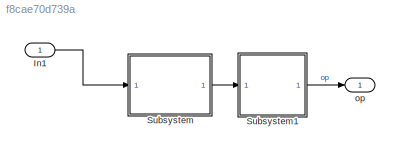
MODEL slx_f8cae70d739a
KIND model
CONFIG AbsTol = auto
CONFIG EnableMultiTasking = off
CONFIG FixedStep = auto
CONFIG MaxStep = auto
CONFIG MinStep = auto
CONFIG RelTol = 1e-3
CONFIG SampleTimeConstraint = Unconstrained
CONFIG SolverName = VariableStepAuto
CONFIG StartTime = 0.0
CONFIG StopTime = 100
BLOCK [Inport] In1
  OutDataTypeStr = double
  PortDimensions = 1
  SampleTime = 0
  SamplingMode = Sample based
  SignalType = real
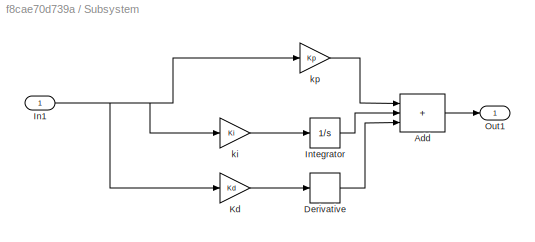
BLOCK [SubSystem] Subsystem
  Ports = [1, 1]
  RequestExecContextInheritance = off
BLOCK [Sum] Subsystem/Add
  IconShape = rectangular
  Inputs = +++
  Ports = [3, 1]
BLOCK [Derivative] Subsystem/Derivative
BLOCK [Inport] Subsystem/In1
BLOCK [Integrator] Subsystem/Integrator
  Ports = [1, 1]
BLOCK [Gain] Subsystem/Kd
  Gain = Kd
BLOCK [Outport] Subsystem/Out1
BLOCK [Gain] Subsystem/ki
  Gain = Ki
BLOCK [Gain] Subsystem/kp
  Gain = Kp
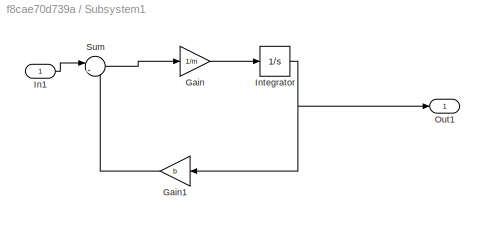
BLOCK [SubSystem] Subsystem1
  Ports = [1, 1]
  RequestExecContextInheritance = off
BLOCK [Gain] Subsystem1/Gain
  Gain = 1/m
BLOCK [Gain] Subsystem1/Gain1
  Gain = b
BLOCK [Inport] Subsystem1/In1
BLOCK [Integrator] Subsystem1/Integrator
  Ports = [1, 1]
BLOCK [Outport] Subsystem1/Out1
BLOCK [Sum] Subsystem1/Sum
  Inputs = |+-
  Ports = [2, 1]
BLOCK [Outport] op
  OutDataTypeStr = double
  PortDimensions = 1
  SampleTime = 0
  SamplingMode = Sample based
  SignalType = real
LINE In1:1 -> Subsystem:1
LINE Subsystem/Add:1 -> Subsystem/Out1:1
LINE Subsystem/Derivative:1 -> Subsystem/Add:3
NET Subsystem/In1:1 -> Subsystem/Kd:1, Subsystem/ki:1, Subsystem/kp:1
LINE Subsystem/Integrator:1 -> Subsystem/Add:2
LINE Subsystem/Kd:1 -> Subsystem/Derivative:1
LINE Subsystem/ki:1 -> Subsystem/Integrator:1
LINE Subsystem/kp:1 -> Subsystem/Add:1
LINE Subsystem1/Gain1:1 -> Subsystem1/Sum:2
LINE Subsystem1/Gain:1 -> Subsystem1/Integrator:1
LINE Subsystem1/In1:1 -> Subsystem1/Sum:1
NET Subsystem1/Integrator:1 -> Subsystem1/Gain1:1, Subsystem1/Out1:1
LINE Subsystem1/Sum:1 -> Subsystem1/Gain:1
LINE Subsystem1:1 -> op:1
LINE Subsystem:1 -> Subsystem1:1
note: NET lines group one-source signal fan-out (src -> all destinations, sorted); 1:1 wires keep LINE
